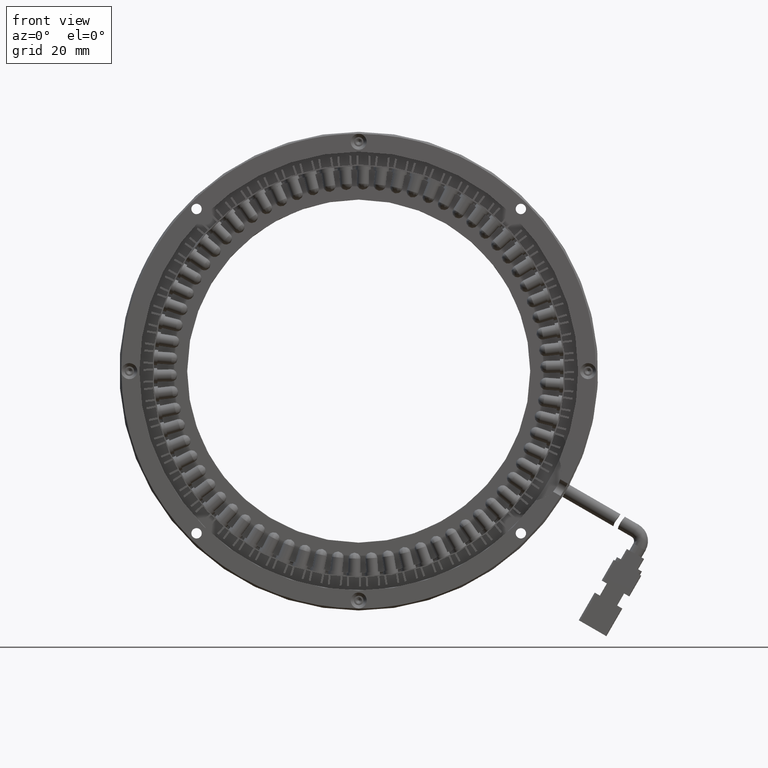
[diagram: clean part render]
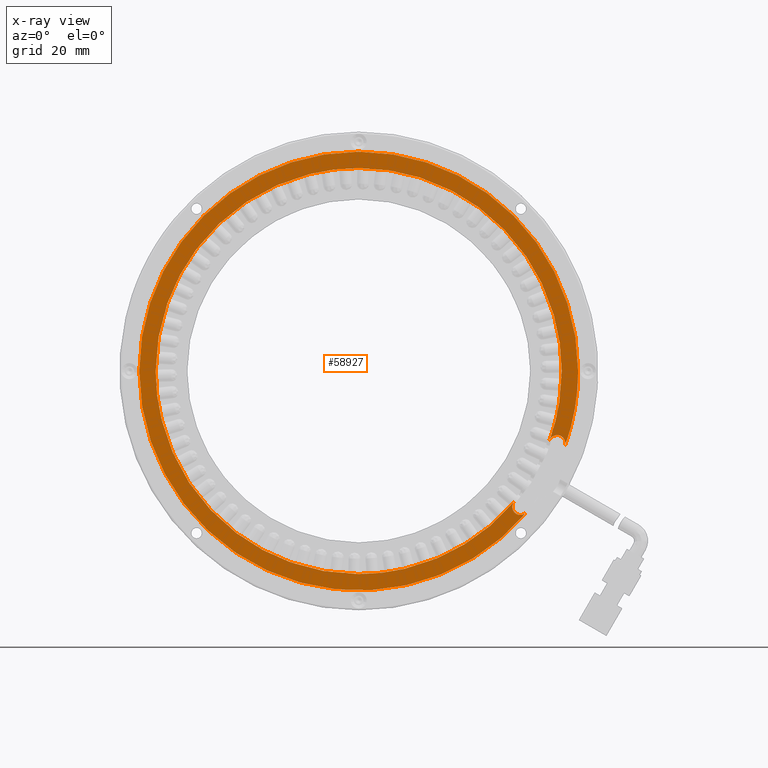
[diagram: x-ray — body ghosted, one internal face saturated and labeled with its STEP entity id]
A machine part, front view, then the same camera in x-ray: the body is ghosted and one INTERNAL B-rep face — a face not visible from any outside direction — is saturated and labeled: STEP entity #58927.
In plain terms, the highlighted planar face has unit normal (0, -1, 0).
Its self-contained STEP definition (entity closure, byte-faithful):
#204 = B_SPLINE_CURVE_WITH_KNOTS ( 'NONE', 3,
 ( #21943, #56544, #26887, #61505, #31898, #2240, #36851, #7206, #41841, #12250, #46818, #17223 ),
 .UNSPECIFIED., .F., .F.,
 ( 4, 2, 2, 2, 2, 4 ),
 ( 0.0000000000000000000, 0.2500000000000000000, 0.5000000000000000000, 0.7500000000000000000, 0.8750000000000000000, 1.000000000000000000 ),
 .UNSPECIFIED. ) ;
#262 = CARTESIAN_POINT ( 'NONE',  ( 25.40607387520768200, 26.51889671362000900, -40.46988774913664600 ) ) ;
#325 = CARTESIAN_POINT ( 'NONE',  ( 104.7936675078781700, 26.51889671361999800, -16.01566741425359600 ) ) ;
#830 = CARTESIAN_POINT ( 'NONE',  ( 72.82459506337231400, 26.51889671362000200, 48.22517476861667500 ) ) ;
#1053 = CARTESIAN_POINT ( 'NONE',  ( 97.85275939107180000, 26.51889671362000200, 29.66327168743788400 ) ) ;
#1265 = CARTESIAN_POINT ( 'NONE',  ( 107.3562518457098800, 26.51889671361706700, 4.670248026143931300E-010 ) ) ;
#1378 = CARTESIAN_POINT ( 'NONE',  ( 56.45624510954652200, 26.51889671361703900, -50.89999999999999900 ) ) ;
#1873 = CARTESIAN_POINT ( 'NONE',  ( 76.28881724357131600, 26.51889671361999800, -46.91387789170980900 ) ) ;
#2240 = CARTESIAN_POINT ( 'NONE',  ( 94.99566523257891500, 26.51889671361999800, -34.54901367626943900 ) ) ;
#2935 = CARTESIAN_POINT ( 'NONE',  ( 97.01829837268245200, 26.51889671361625000, -36.08560393289998600 ) ) ;
#3413 = CARTESIAN_POINT ( 'NONE',  ( 5.884006859384389700, 26.51889671362000200, 6.660797395392687100 ) ) ;
#3627 = CARTESIAN_POINT ( 'NONE',  ( 48.16080707844287900, 26.51889671361999800, 50.24714309782238800 ) ) ;
#3810 = ORIENTED_EDGE ( 'NONE', *, *, #6276, .T. ) ;
#4467 = CARTESIAN_POINT ( 'NONE',  ( 105.2091137337671400, 26.51889671361999800, -16.31021719822989600 ) ) ;
#4521 = DIRECTION ( 'NONE',  ( 0.0000000000000000000, 0.0000000000000000000, 1.000000000000000000 ) ) ;
#4689 = CARTESIAN_POINT ( 'NONE',  ( 97.31801767398215500, 26.51889671361999800, -36.08560393289999300 ) ) ;
#5042 = CARTESIAN_POINT ( 'NONE',  ( 54.78937442624786800, 26.51889671362000200, -50.89999999999999100 ) ) ;
#5262 = CARTESIAN_POINT ( 'NONE',  ( 18.10741077590907400, 26.51889671361999800, -33.63468229911563200 ) ) ;
#5806 = CARTESIAN_POINT ( 'NONE',  ( 77.47361066575641100, 26.51889671362000600, 46.38820226874730700 ) ) ;
#5928 = CARTESIAN_POINT ( 'NONE',  ( 111.4562451095500000, 26.51889671361700700, 0.0000000000000000000 ) ) ;
#6019 = CARTESIAN_POINT ( 'NONE',  ( 100.5595965003141400, 26.51889671361999500, 25.46536390588529700 ) ) ;
#6226 = CARTESIAN_POINT ( 'NONE',  ( 106.2129693801686300, 26.51889671361549400, -16.05996658908999900 ) ) ;
#6276 = EDGE_CURVE ( 'NONE', #50554, #39208, #8025, .T. ) ;
#6851 = CARTESIAN_POINT ( 'NONE',  ( 71.06357186928032400, 26.51889671361999800, -48.79414781736165500 ) ) ;
#6895 = VERTEX_POINT ( 'NONE', #48431 ) ;
#7206 = CARTESIAN_POINT ( 'NONE',  ( 95.01120421857626800, 26.51889671361999800, -33.57493728174080900 ) ) ;
#7222 = EDGE_CURVE ( 'NONE', #35426, #50554, #53246, .T. ) ;
#8025 = B_SPLINE_CURVE_WITH_KNOTS ( 'NONE', 3,
 ( #15038, #5042, #34681, #49610, #19997, #54603, #24895, #59565, #29893, #262, #34893, #5262, #39849, #10253, #44859, #15259, #49813, #20202, #54817, #25123 ),
 .UNSPECIFIED., .F., .F.,
 ( 4, 2, 2, 2, 2, 2, 2, 2, 2, 4 ),
 ( 0.0000000000000000000, 0.03124999999999993100, 0.06249999999999986100, 0.1249999999999998900, 0.1874999999999999200, 0.2499999999999999400, 0.3124999999999999400, 0.3750000000000000000, 0.4375000000000000000, 0.5000000000000000000 ),
 .UNSPECIFIED. ) ;
#8100 = ORIENTED_EDGE ( 'NONE', *, *, #7222, .T. ) ;
#8419 = CARTESIAN_POINT ( 'NONE',  ( 8.155195345716574500, 26.51889671361999800, 16.39896628700667600 ) ) ;
#8632 = CARTESIAN_POINT ( 'NONE',  ( 53.12601614058372900, 26.51889671361999800, 50.81830086253827300 ) ) ;
#8634 = ORIENTED_EDGE ( 'NONE', *, *, #62637, .F. ) ;
#8638 = CARTESIAN_POINT ( 'NONE',  ( 106.7495667950427000, 26.51889671362000200, -16.11324002181363800 ) ) ;
#9481 = CARTESIAN_POINT ( 'NONE',  ( 105.7969494481962400, 26.51889671361999800, -16.09159333941204700 ) ) ;
#9507 = CARTESIAN_POINT ( 'NONE',  ( 108.2629940726218200, 26.51889671361625000, -18.10996659951811300 ) ) ;
#9603 = EDGE_CURVE ( 'NONE', #38892, #59137, #43263, .T. ) ;
#10099 = CARTESIAN_POINT ( 'NONE',  ( 107.3563099333608900, 26.51889671361999800, -1.481334884097189600 ) ) ;
#10253 = CARTESIAN_POINT ( 'NONE',  ( 12.28247187426224900, 26.51889671361999500, -25.50691487160292000 ) ) ;
#10584 = CARTESIAN_POINT ( 'NONE',  ( 56.45624510953188500, 26.51889671361704600, 50.90000000000001300 ) ) ;
#10629 = ORIENTED_EDGE ( 'NONE', *, *, #47858, .T. ) ;
#10808 = CARTESIAN_POINT ( 'NONE',  ( 81.92029611412967000, 26.51889671362000200, 44.10415437209533700 ) ) ;
#11024 = CARTESIAN_POINT ( 'NONE',  ( 102.8437276067713200, 26.51889671362000200, 21.01895412697521700 ) ) ;
#11662 = CARTESIAN_POINT ( 'NONE',  ( 95.44790726429383200, 26.51889671361582800, -32.71788933304571900 ) ) ;
#11720 = CARTESIAN_POINT ( 'NONE',  ( 98.58868948107824800, 26.51889671361639600, -35.35331853275853600 ) ) ;
#11875 = CARTESIAN_POINT ( 'NONE',  ( 65.66468447562010600, 26.51889671361999800, -50.09438592028164500 ) ) ;
#12250 = CARTESIAN_POINT ( 'NONE',  ( 95.22037118512243100, 26.51889671361999800, -33.03152639169043400 ) ) ;
#12984 = CARTESIAN_POINT ( 'NONE',  ( 56.45624510953188500, 26.51889671361704600, 50.90000000000001300 ) ) ;
#13408 = CARTESIAN_POINT ( 'NONE',  ( 12.28256608648485400, 26.51889671362000600, 25.50693209981170300 ) ) ;
#13624 = CARTESIAN_POINT ( 'NONE',  ( 56.45624510953188500, 26.51889671361704600, 50.90000000000001300 ) ) ;
#13632 = CARTESIAN_POINT ( 'NONE',  ( 106.2129693801686300, 26.51889671361549400, -16.05996658908999900 ) ) ;
#13934 = EDGE_CURVE ( 'NONE', #23944, #37060, #14625, .T. ) ;
#14485 = CARTESIAN_POINT ( 'NONE',  ( 106.2129693801686300, 26.51889671361549400, -16.05996658908999900 ) ) ;
#14625 = B_SPLINE_CURVE_WITH_KNOTS ( 'NONE', 3,
 ( #13632, #43243, #8638, #18609, #53207, #23528, #58175, #28498, #63122, #33502 ),
 .UNSPECIFIED., .F., .F.,
 ( 4, 2, 2, 2, 4 ),
 ( 0.0000000000000000000, 0.2045663625536064400, 0.4091327251072128800, 0.6136990876608192600, 0.8182654502144257600 ),
 .UNSPECIFIED. ) ;
#14700 = CARTESIAN_POINT ( 'NONE',  ( 108.2213692306013500, 26.51889671361999800, -18.58573237121041500 ) ) ;
#15038 = CARTESIAN_POINT ( 'NONE',  ( 56.45624510954652200, 26.51889671361703900, -50.89999999999999900 ) ) ;
#15259 = CARTESIAN_POINT ( 'NONE',  ( 8.155106304472967700, 26.51889671361999800, -16.39893100913700500 ) ) ;
#15480 = ORIENTED_EDGE ( 'NONE', *, *, #17727, .F. ) ;
#15594 = CARTESIAN_POINT ( 'NONE',  ( 58.12378614070481600, 26.51889671362000600, 50.90000000000001300 ) ) ;
#15810 = CARTESIAN_POINT ( 'NONE',  ( 86.12016373316362200, 26.51889671362000200, 41.39609968301202500 ) ) ;
#16032 = CARTESIAN_POINT ( 'NONE',  ( 104.6809622507520700, 26.51889671362000200, 16.36981925736114700 ) ) ;
#16664 = CARTESIAN_POINT ( 'NONE',  ( 92.99225552372956800, 26.51889671362000200, -35.48744807836808900 ) ) ;
#16876 = CARTESIAN_POINT ( 'NONE',  ( 60.15615057892195200, 26.51889671361999800, -50.79915587183834400 ) ) ;
#17223 = CARTESIAN_POINT ( 'NONE',  ( 95.44790726429383200, 26.51889671361582800, -32.71788933304571900 ) ) ;
#17316 = ORIENTED_EDGE ( 'NONE', *, *, #55118, .T. ) ;
#17727 = EDGE_CURVE ( 'NONE', #59137, #22636, #57396, .T. ) ;
#18088 = ORIENTED_EDGE ( 'NONE', *, *, #55066, .T. ) ;
#18400 = CARTESIAN_POINT ( 'NONE',  ( 18.10750653931237900, 26.51889671361999500, 33.63468081679621900 ) ) ;
#18609 = CARTESIAN_POINT ( 'NONE',  ( 107.2448028913066100, 26.51889671361999800, -16.31846984271663100 ) ) ;
#19997 = CARTESIAN_POINT ( 'NONE',  ( 48.16083009003381200, 26.51889671361999800, -50.24711261977888900 ) ) ;
#20061 = CARTESIAN_POINT ( 'NONE',  ( 107.0335753954914800, 26.51889671361999800, -5.910449698887409100 ) ) ;
#20202 = CARTESIAN_POINT ( 'NONE',  ( 5.883926411546610800, 26.51889671361999800, -6.660745425153272900 ) ) ;
#20547 = CARTESIAN_POINT ( 'NONE',  ( 59.78654486201143200, 26.51889671362000600, 50.81833409539307700 ) ) ;
#20760 = CARTESIAN_POINT ( 'NONE',  ( 90.03346181228931800, 26.51889671362000200, 38.29036378274679500 ) ) ;
#20960 = CARTESIAN_POINT ( 'NONE',  ( 106.0534228182083900, 26.51889671362000200, 11.56325347238492900 ) ) ;
#21587 = CARTESIAN_POINT ( 'NONE',  ( 88.91167597810736800, 26.51889671361999800, -39.25409263351545500 ) ) ;
#21783 = CARTESIAN_POINT ( 'NONE',  ( 56.45624510954652200, 26.51889671361703900, -50.89999999999999900 ) ) ;
#21943 = CARTESIAN_POINT ( 'NONE',  ( 97.01829837268245200, 26.51889671361625000, -36.08560393289998600 ) ) ;
#22159 = CARTESIAN_POINT ( 'NONE',  ( 56.45624510954999000, 26.51889671361700400, 0.0000000000000000000 ) ) ;
#22405 = CARTESIAN_POINT ( 'NONE',  ( 56.45624510954999000, 26.51889671361700400, 0.0000000000000000000 ) ) ;
#22636 = VERTEX_POINT ( 'NONE', #5928 ) ;
#23305 = CARTESIAN_POINT ( 'NONE',  ( 25.40616750947226200, 26.51889671361999100, 40.46986761288341900 ) ) ;
#23528 = CARTESIAN_POINT ( 'NONE',  ( 107.8521202247297500, 26.51889671361999800, -16.84984560682197200 ) ) ;
#23923 = CARTESIAN_POINT ( 'NONE',  ( 104.3584792415676800, 26.51889671361999800, -17.21133734924919900 ) ) ;
#23944 = VERTEX_POINT ( 'NONE', #6226 ) ;
#24133 = CARTESIAN_POINT ( 'NONE',  ( 104.2865995075451200, 26.51889671361615100, -17.40882529527371900 ) ) ;
#24137 = CARTESIAN_POINT ( 'NONE',  ( 98.58868948107824800, 26.51889671361639600, -35.35331853275853600 ) ) ;
#24348 = CARTESIAN_POINT ( 'NONE',  ( 98.39651065991415600, 26.51889671361999800, -35.58234833331888300 ) ) ;
#24895 = CARTESIAN_POINT ( 'NONE',  ( 40.05733916196127400, 26.51889671361999800, -48.30107830071237600 ) ) ;
#24965 = CARTESIAN_POINT ( 'NONE',  ( 106.3261792178825700, 26.51889671361999800, -10.29540515301082200 ) ) ;
#25123 = CARTESIAN_POINT ( 'NONE',  ( 5.556245109549984700, 26.51889671361847100, -5.260106464506403600E-012 ) ) ;
#25465 = CARTESIAN_POINT ( 'NONE',  ( 64.75260245585306500, 26.51889671361999500, 50.24703753962068500 ) ) ;
#25673 = CARTESIAN_POINT ( 'NONE',  ( 93.62473146255430800, 26.51889671361999800, 34.81509095276935300 ) ) ;
#25783 = FACE_OUTER_BOUND ( 'NONE', #58933, .T. ) ;
#25900 = CARTESIAN_POINT ( 'NONE',  ( 106.9479367558927800, 26.51889671362000200, 6.646161897768612500 ) ) ;
#26078 = ORIENTED_EDGE ( 'NONE', *, *, #37793, .T. ) ;
#26529 = CARTESIAN_POINT ( 'NONE',  ( 84.44530148395654100, 26.51889671361999800, -42.55410091418872300 ) ) ;
#26887 = CARTESIAN_POINT ( 'NONE',  ( 96.24538661284874800, 26.51889671362000200, -35.97374348096554500 ) ) ;
#27080 = DIRECTION ( 'NONE',  ( 1.000000000000000000, 6.308085367188390000E-017, 0.0000000000000000000 ) ) ;
#27124 = EDGE_CURVE ( 'NONE', #6895, #35124, #56904, .T. ) ;
#27166 = ORIENTED_EDGE ( 'NONE', *, *, #51583, .T. ) ;
#27358 = DIRECTION ( 'NONE',  ( 1.000000000000000000, 6.308085367188390000E-017, 0.0000000000000000000 ) ) ;
#28051 = CARTESIAN_POINT ( 'NONE',  ( 5.556245109549984700, 26.51889671361847100, -5.260106464506403600E-012 ) ) ;
#28207 = AXIS2_PLACEMENT_3D ( 'NONE', #29166, #34164, #4521 ) ;
#28269 = CARTESIAN_POINT ( 'NONE',  ( 33.89803467176491100, 26.51889671361999800, 45.74980730221788900 ) ) ;
#28498 = CARTESIAN_POINT ( 'NONE',  ( 108.2100366687376400, 26.51889671361999800, -17.57448026055307400 ) ) ;
#28756 = DIRECTION ( 'NONE',  ( -3.154042683594195600E-017, 1.000000000000000000, -0.0000000000000000000 ) ) ;
#29123 = CARTESIAN_POINT ( 'NONE',  ( 104.4588099106009100, 26.51889671362000200, -17.02863101656479100 ) ) ;
#29166 = CARTESIAN_POINT ( 'NONE',  ( 113.6891704186999900, 26.51889671361999800, -57.19999999999999600 ) ) ;
#29893 = CARTESIAN_POINT ( 'NONE',  ( 30.94936662251100400, 26.51889671361999800, -44.17371878327195800 ) ) ;
#29956 = CARTESIAN_POINT ( 'NONE',  ( 105.2387383753806300, 26.51889671361999800, -14.60417290471351100 ) ) ;
#30467 = CARTESIAN_POINT ( 'NONE',  ( 69.63857196180636300, 26.51889671361999500, 49.19161618714368700 ) ) ;
#30683 = CARTESIAN_POINT ( 'NONE',  ( 96.85871171428804900, 26.51889671361999800, 31.00377232226369600 ) ) ;
#30783 = AXIS2_PLACEMENT_3D ( 'NONE', #22159, #56759, #27080 ) ;
#30901 = CARTESIAN_POINT ( 'NONE',  ( 107.3562008130526700, 26.51889671361999800, 1.666455289235170100 ) ) ;
#31010 = VERTEX_POINT ( 'NONE', #2935 ) ;
#31534 = CARTESIAN_POINT ( 'NONE',  ( 79.64621202074329200, 26.51889671361999800, -45.34825482861585000 ) ) ;
#31898 = CARTESIAN_POINT ( 'NONE',  ( 95.32506958597103600, 26.51889671361999800, -35.25492906266791200 ) ) ;
#33247 = CARTESIAN_POINT ( 'NONE',  ( 108.1393392527727400, 26.51889671361639600, -18.81110788290745400 ) ) ;
#33281 = CARTESIAN_POINT ( 'NONE',  ( 43.25682899989948300, 26.51889671362000600, 49.27162612192815100 ) ) ;
#33502 = CARTESIAN_POINT ( 'NONE',  ( 108.2629940726218200, 26.51889671361625000, -18.10996659951811300 ) ) ;
#34115 = CARTESIAN_POINT ( 'NONE',  ( 104.8651616375936000, 26.51889671361999800, -16.55119259836519400 ) ) ;
#34164 = DIRECTION ( 'NONE',  ( 0.0000000000000000000, -1.000000000000000000, 0.0000000000000000000 ) ) ;
#34335 = CARTESIAN_POINT ( 'NONE',  ( 97.61406226859531900, 26.51889671361999800, -36.01980779823271200 ) ) ;
#34681 = CARTESIAN_POINT ( 'NONE',  ( 53.12585306952841800, 26.51889671361999800, -50.81825189664540700 ) ) ;
#34893 = CARTESIAN_POINT ( 'NONE',  ( 22.82160911841152300, 26.51889671362000200, -38.34878802568606900 ) ) ;
#34958 = CARTESIAN_POINT ( 'NONE',  ( 104.2865995075451200, 26.51889671361615100, -17.40882529527371900 ) ) ;
#35124 = VERTEX_POINT ( 'NONE', #56769 ) ;
#35426 = VERTEX_POINT ( 'NONE', #45322 ) ;
#35461 = CARTESIAN_POINT ( 'NONE',  ( 74.39672999791444900, 26.51889671361999800, 47.66257905183898200 ) ) ;
#35653 = CARTESIAN_POINT ( 'NONE',  ( 99.70370530092894500, 26.51889671361999800, 26.89335504278859200 ) ) ;
#36482 = CARTESIAN_POINT ( 'NONE',  ( 74.57145591769544500, 26.51889671361999800, -47.60333936523537100 ) ) ;
#36851 = CARTESIAN_POINT ( 'NONE',  ( 94.93510078349844200, 26.51889671361999500, -34.15420115306560000 ) ) ;
#37060 = VERTEX_POINT ( 'NONE', #9507 ) ;
#37388 = VERTEX_POINT ( 'NONE', #33247 ) ;
#37793 = EDGE_CURVE ( 'NONE', #31010, #35426, #204, .T. ) ;
#37956 = ORIENTED_EDGE ( 'NONE', *, *, #39072, .T. ) ;
#38030 = CARTESIAN_POINT ( 'NONE',  ( 7.184541814664910000, 26.51889671361999800, 13.19939738584012500 ) ) ;
#38236 = CARTESIAN_POINT ( 'NONE',  ( 49.80832919296634000, 26.51889671361999800, 50.49150431269133300 ) ) ;
#38892 = VERTEX_POINT ( 'NONE', #11720 ) ;
#39072 = EDGE_CURVE ( 'NONE', #39208, #53356, #56086, .T. ) ;
#39089 = CARTESIAN_POINT ( 'NONE',  ( 105.3960955342362800, 26.51889671361999800, -16.21810034070021800 ) ) ;
#39208 = VERTEX_POINT ( 'NONE', #59026 ) ;
#39303 = CARTESIAN_POINT ( 'NONE',  ( 108.2629940726218200, 26.51889671361625000, -18.10996659951811300 ) ) ;
#39305 = CARTESIAN_POINT ( 'NONE',  ( 97.01829837268245200, 26.51889671361625000, -36.08560393289998600 ) ) ;
#39484 = CARTESIAN_POINT ( 'NONE',  ( 107.3562518457098800, 26.51889671361706700, 4.670248026143931300E-010 ) ) ;
#39849 = CARTESIAN_POINT ( 'NONE',  ( 15.98641181244665800, 26.51889671361999800, -31.05013484980462100 ) ) ;
#40042 = CIRCLE ( 'NONE', #46846, 55.00000000000000000 ) ;
#40420 = CARTESIAN_POINT ( 'NONE',  ( 78.98088627312654400, 26.51889671362000200, 45.67519132533117000 ) ) ;
#40650 = CARTESIAN_POINT ( 'NONE',  ( 102.1322153879976300, 26.51889671361999500, 22.52331600292138300 ) ) ;
#41032 = B_SPLINE_CURVE_WITH_KNOTS ( 'NONE', 3,
 ( #24133, #23923, #29123, #63748, #34115, #4467, #39089, #9481, #44075, #14485 ),
 .UNSPECIFIED., .F., .F.,
 ( 4, 2, 2, 2, 4 ),
 ( 0.0000000000000000000, 0.2500000000000000000, 0.5000000000000000000, 0.7500000000000000000, 1.000000000000000000 ),
 .UNSPECIFIED. ) ;
#41055 = CARTESIAN_POINT ( 'NONE',  ( 94.25717763691881100, 26.51889671361999800, -34.13694564429200500 ) ) ;
#41154 = B_SPLINE_CURVE_WITH_KNOTS ( 'NONE', 3,
 ( #39303, #44291, #14700, #49269 ),
 .UNSPECIFIED., .F., .F.,
 ( 4, 4 ),
 ( 0.8182654502144257600, 1.000000000000000000 ),
 .UNSPECIFIED. ) ;
#41478 = CARTESIAN_POINT ( 'NONE',  ( 69.28135844239513100, 26.51889671361999800, -49.29254760452393900 ) ) ;
#41841 = CARTESIAN_POINT ( 'NONE',  ( 95.06344849588772700, 26.51889671361999800, -33.38842004568898900 ) ) ;
#42856 = B_SPLINE_CURVE_WITH_KNOTS ( 'NONE', 3,
 ( #10584, #15594, #20547, #55164, #25465, #60108, #30467, #830, #35461, #5806, #40420, #10808, #45424, #15810, #50354, #20760, #55368, #25673, #60320, #30683, #1053, #35653, #6019, #40650, #11024, #45638, #16032, #50578, #20960, #55584, #25900, #60526, #30901, #1265 ),
 .UNSPECIFIED., .F., .F.,
 ( 4, 2, 2, 2, 2, 2, 2, 2, 2, 2, 2, 2, 2, 2, 2, 2, 4 ),
 ( 0.0000000000000000000, 0.05113610444738812800, 0.1022722088947764800, 0.1534083133421648100, 0.2045444177895531800, 0.2556805222369415400, 0.3068166266843298500, 0.3579527311317182200, 0.4090888355791065800, 0.4602249400264948300, 0.5113610444738830900, 0.5624971489212713400, 0.6136332533686594800, 0.6647693578160477300, 0.7159054622634358800, 0.7670415667108242400, 0.8181776711582123800 ),
 .UNSPECIFIED. ) ;
#43025 = CARTESIAN_POINT ( 'NONE',  ( 10.70635846373137800, 26.51889671361999800, 22.55820712775216200 ) ) ;
#43237 = CARTESIAN_POINT ( 'NONE',  ( 54.78904028817538600, 26.51889671362000200, 50.90000000000001300 ) ) ;
#43243 = CARTESIAN_POINT ( 'NONE',  ( 106.4823319166383400, 26.51889671361999800, -16.05996658908999900 ) ) ;
#43263 = CIRCLE ( 'NONE', #51410, 55.00000000000000000 ) ;
#44075 = CARTESIAN_POINT ( 'NONE',  ( 106.0024317445241500, 26.51889671361999800, -16.05996658908999900 ) ) ;
#44291 = CARTESIAN_POINT ( 'NONE',  ( 108.2629685270748800, 26.51889671361999800, -18.34787773702494500 ) ) ;
#44859 = CARTESIAN_POINT ( 'NONE',  ( 10.70644750498303900, 26.51889671361999800, -22.55824240564128000 ) ) ;
#45322 = CARTESIAN_POINT ( 'NONE',  ( 95.44790726429383200, 26.51889671361582800, -32.71788933304571900 ) ) ;
#45424 = CARTESIAN_POINT ( 'NONE',  ( 83.34815160613703700, 26.51889671361999800, 43.24833604363151100 ) ) ;
#45638 = CARTESIAN_POINT ( 'NONE',  ( 104.1188513475901900, 26.51889671361999800, 17.94038577706800900 ) ) ;
#46460 = CARTESIAN_POINT ( 'NONE',  ( 63.83898750012691200, 26.51889671361999800, -50.39577935919173500 ) ) ;
#46818 = CARTESIAN_POINT ( 'NONE',  ( 95.32237032638940400, 26.51889671362000200, -32.86749842980808000 ) ) ;
#46844 = B_SPLINE_CURVE_WITH_KNOTS ( 'NONE', 3,
 ( #24137, #24348, #63970, #34335, #4689, #39305 ),
 .UNSPECIFIED., .F., .F.,
 ( 4, 2, 4 ),
 ( 0.0000000000000000000, 0.5000000000000000000, 1.000000000000000000 ),
 .UNSPECIFIED. ) ;
#46846 = AXIS2_PLACEMENT_3D ( 'NONE', #22405, #57008, #27358 ) ;
#47858 = EDGE_CURVE ( 'NONE', #38892, #31010, #46844, .T. ) ;
#47991 = CARTESIAN_POINT ( 'NONE',  ( 15.98631760021237000, 26.51889671361999800, 31.05011762157835900 ) ) ;
#48431 = CARTESIAN_POINT ( 'NONE',  ( 107.3562518457098800, 26.51889671361706700, 4.670248026143931300E-010 ) ) ;
#49269 = CARTESIAN_POINT ( 'NONE',  ( 108.1393392527727400, 26.51889671361639600, -18.81110788290745400 ) ) ;
#49610 = CARTESIAN_POINT ( 'NONE',  ( 49.80849226404254900, 26.51889671362000600, -50.49155327858623800 ) ) ;
#49664 = CARTESIAN_POINT ( 'NONE',  ( 107.2917835663834700, 26.51889671362000200, -2.959691800880913400 ) ) ;
#49813 = CARTESIAN_POINT ( 'NONE',  ( 7.184622262506801200, 26.51889671361999800, -13.19944935610017100 ) ) ;
#50354 = CARTESIAN_POINT ( 'NONE',  ( 87.45868745237682200, 26.51889671362000600, 40.40351379886799100 ) ) ;
#50365 = CARTESIAN_POINT ( 'NONE',  ( 1.456245109549989100, 26.51889671361700000, 6.735557395310442600E-015 ) ) ;
#50554 = VERTEX_POINT ( 'NONE', #1378 ) ;
#50578 = CARTESIAN_POINT ( 'NONE',  ( 105.6475732304488000, 26.51889671361999500, 13.18320469791620500 ) ) ;
#51207 = CARTESIAN_POINT ( 'NONE',  ( 90.31626377400986900, 26.51889671361999800, -38.04920325931077200 ) ) ;
#51409 = CARTESIAN_POINT ( 'NONE',  ( 58.30904260226729700, 26.51889671362000200, -50.89999999999999900 ) ) ;
#51410 = AXIS2_PLACEMENT_3D ( 'NONE', #58442, #28756, #63384 ) ;
#51583 = EDGE_CURVE ( 'NONE', #53356, #6895, #42856, .T. ) ;
#51610 = ORIENTED_EDGE ( 'NONE', *, *, #27124, .T. ) ;
#52981 = CARTESIAN_POINT ( 'NONE',  ( 22.82151335499334300, 26.51889671361999100, 38.34878950799058800 ) ) ;
#53207 = CARTESIAN_POINT ( 'NONE',  ( 107.4732465400562800, 26.51889671361999800, -16.47111114605650800 ) ) ;
#53246 = B_SPLINE_CURVE_WITH_KNOTS ( 'NONE', 3,
 ( #11662, #41055, #16664, #51207, #21587, #56199, #26529, #61153, #31534, #1873, #36482, #6851, #41478, #11875, #46460, #16876, #51409, #21783 ),
 .UNSPECIFIED., .F., .F.,
 ( 4, 2, 2, 2, 2, 2, 2, 2, 4 ),
 ( 0.0000000000000000000, 0.1250000000000000000, 0.2500000000000000000, 0.3750000000000000000, 0.5000000000000000000, 0.6250000000000000000, 0.7500000000000000000, 0.8750000000000000000, 1.000000000000000000 ),
 .UNSPECIFIED. ) ;
#53356 = VERTEX_POINT ( 'NONE', #12984 ) ;
#54240 = ORIENTED_EDGE ( 'NONE', *, *, #13934, .T. ) ;
#54603 = CARTESIAN_POINT ( 'NONE',  ( 43.25678297674848200, 26.51889671362000600, -49.27168707802127300 ) ) ;
#54677 = CARTESIAN_POINT ( 'NONE',  ( 106.8401199260077700, 26.51889671361999800, -7.380743873133185100 ) ) ;
#54817 = CARTESIAN_POINT ( 'NONE',  ( 5.556277853956411100, 26.51889671362000200, -3.333375449674135000 ) ) ;
#55066 = EDGE_CURVE ( 'NONE', #35124, #23944, #41032, .T. ) ;
#55118 = EDGE_CURVE ( 'NONE', #37060, #37388, #41154, .T. ) ;
#55164 = CARTESIAN_POINT ( 'NONE',  ( 63.10249768488622400, 26.51889671361999500, 50.49167047696528200 ) ) ;
#55368 = CARTESIAN_POINT ( 'NONE',  ( 91.27043481988675900, 26.51889671361999800, 37.16939900917218200 ) ) ;
#55584 = CARTESIAN_POINT ( 'NONE',  ( 106.7029969966896200, 26.51889671361999800, 8.297855721284209500 ) ) ;
#56086 = B_SPLINE_CURVE_WITH_KNOTS ( 'NONE', 3,
 ( #28051, #62682, #3413, #38030, #8419, #43025, #13408, #47991, #18400, #52981, #23305, #57963, #28269, #62905, #33281, #3627, #38236, #8632, #43237, #13624 ),
 .UNSPECIFIED., .F., .F.,
 ( 4, 2, 2, 2, 2, 2, 2, 2, 2, 4 ),
 ( 0.5000000000000000000, 0.5625000000000000000, 0.6250000000000000000, 0.6875000000000000000, 0.7500000000000000000, 0.8125000000000000000, 0.8750000000000000000, 0.9375000000000000000, 0.9687500000000000000, 1.000000000000000000 ),
 .UNSPECIFIED. ) ;
#56199 = CARTESIAN_POINT ( 'NONE',  ( 85.97272771408704300, 26.51889671361999800, -41.50927740812717600 ) ) ;
#56544 = CARTESIAN_POINT ( 'NONE',  ( 96.62844504270351800, 26.51889671361999800, -36.08560393289999300 ) ) ;
#56759 = DIRECTION ( 'NONE',  ( -3.154042683594195600E-017, 1.000000000000000000, -0.0000000000000000000 ) ) ;
#56769 = CARTESIAN_POINT ( 'NONE',  ( 104.2865995075451200, 26.51889671361615100, -17.40882529527371900 ) ) ;
#56904 = B_SPLINE_CURVE_WITH_KNOTS ( 'NONE', 3,
 ( #39484, #10099, #49664, #20061, #54677, #24965, #59623, #29956, #325, #34958 ),
 .UNSPECIFIED., .F., .F.,
 ( 4, 2, 2, 2, 4 ),
 ( 0.8181776711582123800, 0.8636332533686592600, 0.9090888355791062500, 0.9545444177895531200, 1.000000000000000000 ),
 .UNSPECIFIED. ) ;
#57008 = DIRECTION ( 'NONE',  ( -3.154042683594195600E-017, 1.000000000000000000, -0.0000000000000000000 ) ) ;
#57396 = CIRCLE ( 'NONE', #30783, 55.00000000000000000 ) ;
#57963 = CARTESIAN_POINT ( 'NONE',  ( 30.94927298822892700, 26.51889671361999800, 44.17373891951346100 ) ) ;
#58175 = CARTESIAN_POINT ( 'NONE',  ( 108.0037992282614700, 26.51889671361999800, -17.07644587213456000 ) ) ;
#58442 = CARTESIAN_POINT ( 'NONE',  ( 56.45624510954999000, 26.51889671361700400, 0.0000000000000000000 ) ) ;
#58836 = PLANE ( 'NONE',  #28207 ) ;
#58927 = ADVANCED_FACE ( 'NONE', ( #25783 ), #58836, .T. ) ;
#58933 = EDGE_LOOP ( 'NONE', ( #27166, #51610, #18088, #54240, #17316, #8634, #15480, #62009, #10629, #26078, #8100, #3810, #37956 ) ) ;
#59026 = CARTESIAN_POINT ( 'NONE',  ( 5.556245109549984700, 26.51889671361847100, -5.260106464506403600E-012 ) ) ;
#59137 = VERTEX_POINT ( 'NONE', #50365 ) ;
#59565 = CARTESIAN_POINT ( 'NONE',  ( 33.89797764238963400, 26.51889671362000200, -45.74985810894369800 ) ) ;
#59623 = CARTESIAN_POINT ( 'NONE',  ( 106.0048858447456900, 26.51889671361999800, -11.74451062858221700 ) ) ;
#60108 = CARTESIAN_POINT ( 'NONE',  ( 68.01859964645936400, 26.51889671361999500, 49.59733465117089000 ) ) ;
#60320 = CARTESIAN_POINT ( 'NONE',  ( 94.74633405153107900, 26.51889671362000200, 33.57758869319515300 ) ) ;
#60526 = CARTESIAN_POINT ( 'NONE',  ( 107.2744866105402800, 26.51889671361999800, 3.331847257112134000 ) ) ;
#61153 = CARTESIAN_POINT ( 'NONE',  ( 81.27830641589346800, 26.51889671361999800, -44.47592752031182100 ) ) ;
#61505 = CARTESIAN_POINT ( 'NONE',  ( 95.58828173832982600, 26.51889671361999800, -35.55536931266763600 ) ) ;
#62009 = ORIENTED_EDGE ( 'NONE', *, *, #9603, .F. ) ;
#62637 = EDGE_CURVE ( 'NONE', #22636, #37388, #40042, .T. ) ;
#62682 = CARTESIAN_POINT ( 'NONE',  ( 5.556212365143554000, 26.51889671361999800, 3.333375449663616300 ) ) ;
#62905 = CARTESIAN_POINT ( 'NONE',  ( 40.05728213256652000, 26.51889671362000200, 48.30112910743011400 ) ) ;
#63122 = CARTESIAN_POINT ( 'NONE',  ( 108.2630753145470200, 26.51889671361999800, -17.84216602957619800 ) ) ;
#63384 = DIRECTION ( 'NONE',  ( 1.000000000000000000, 6.308085367188390000E-017, 0.0000000000000000000 ) ) ;
#63748 = CARTESIAN_POINT ( 'NONE',  ( 104.7143801546050700, 26.51889671361999800, -16.69538030267937900 ) ) ;
#63970 = CARTESIAN_POINT ( 'NONE',  ( 98.15526934994197500, 26.51889671362000200, -35.76726199441731800 ) ) ;